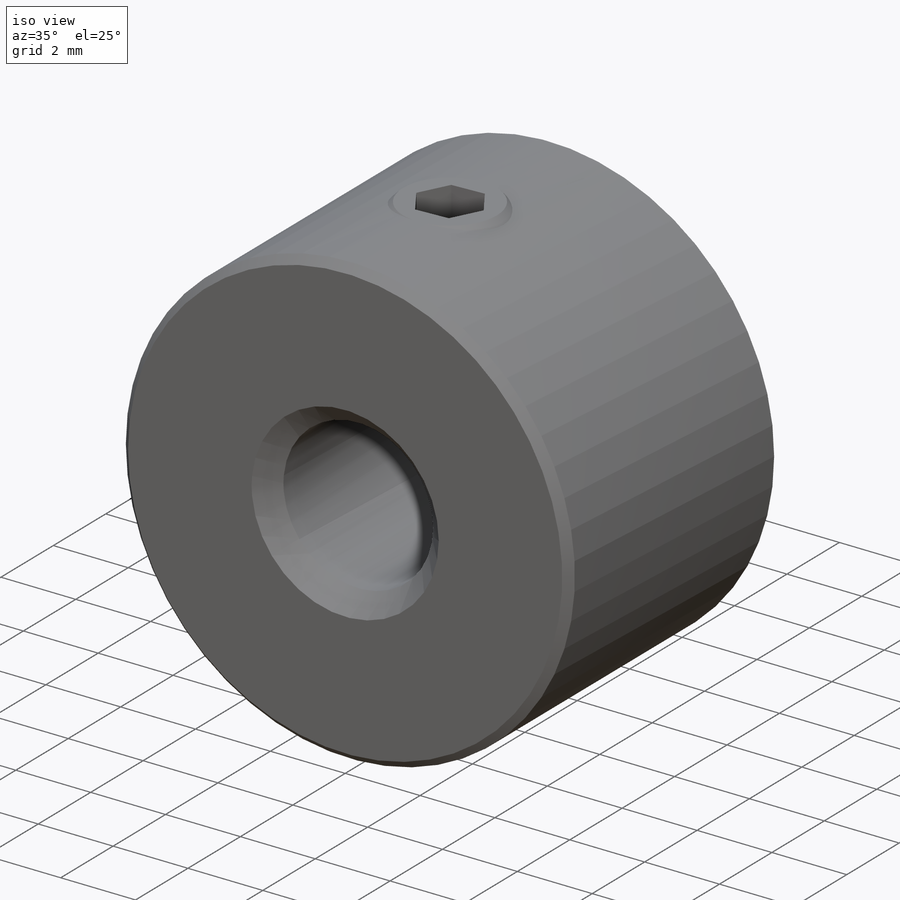
[diagram: iso view]
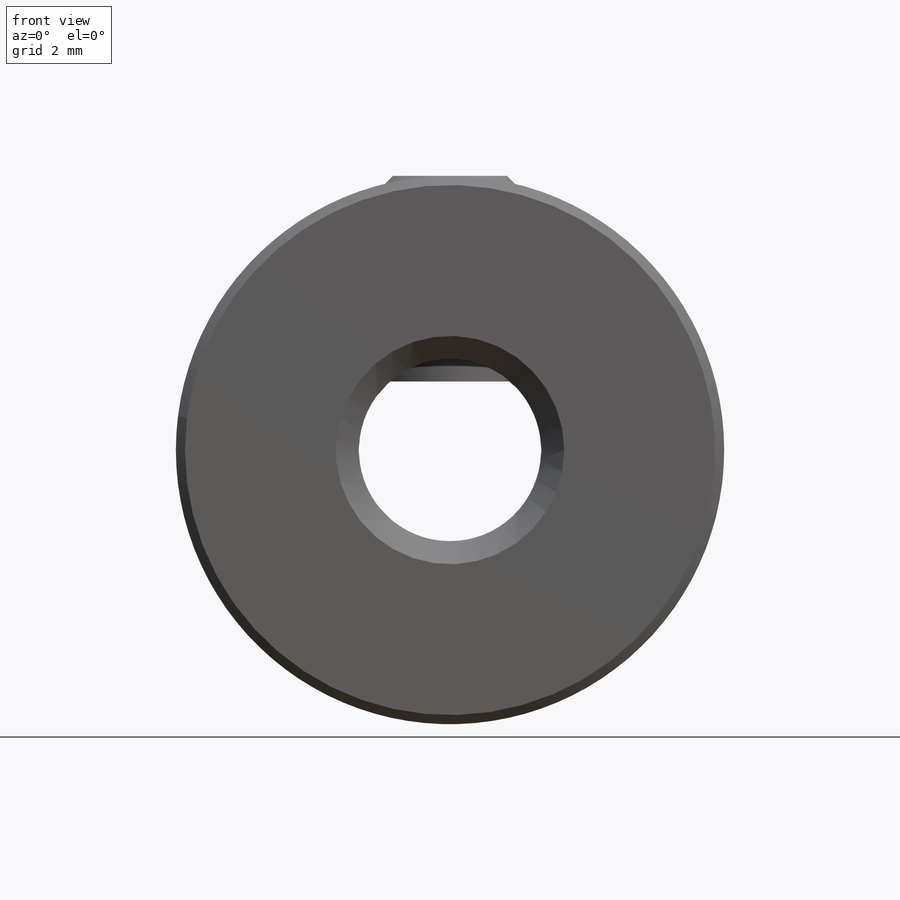
[diagram: front view]
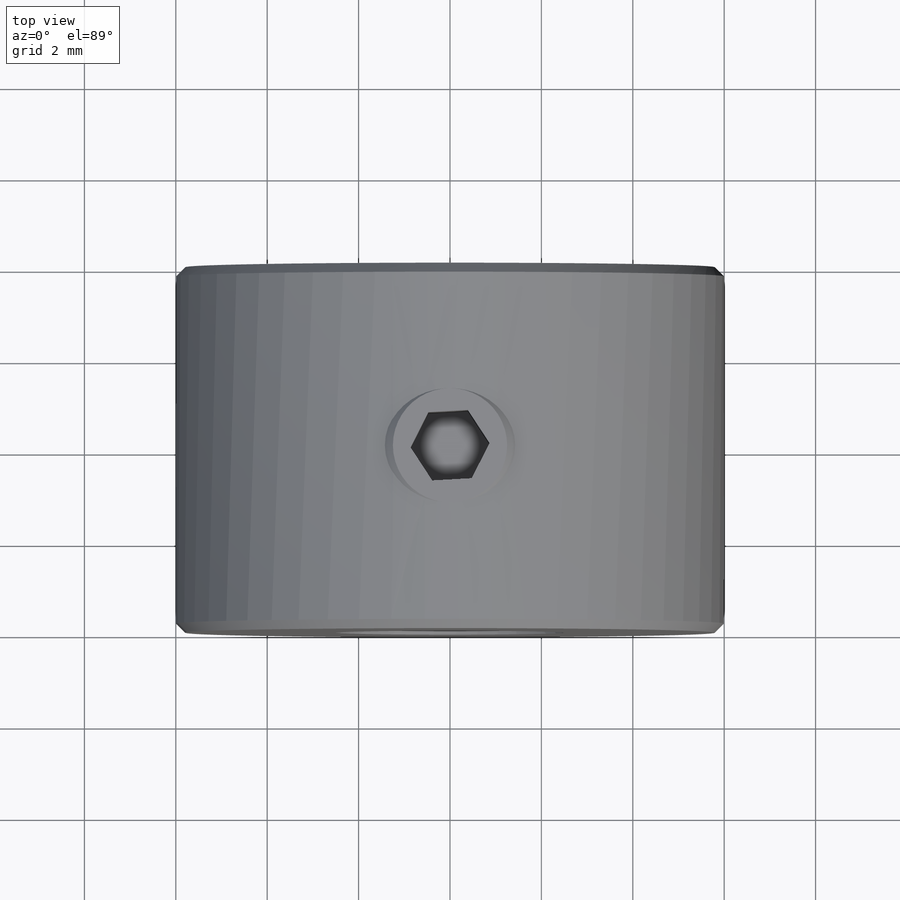
[diagram: top view]
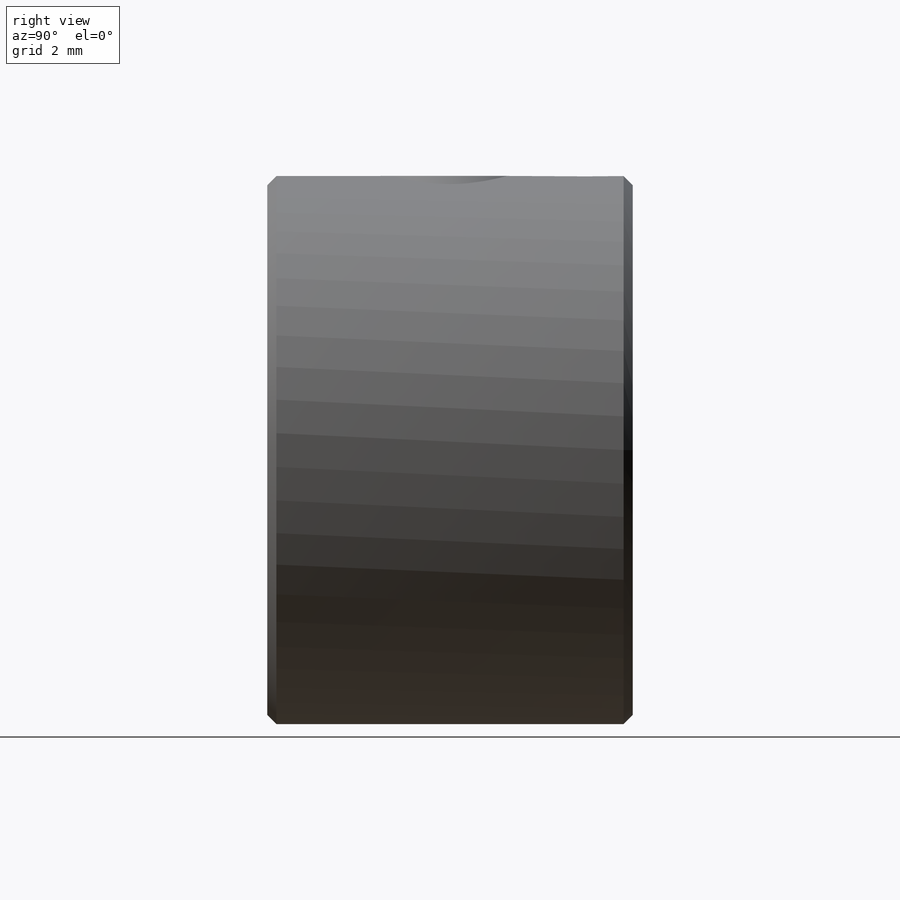
[diagram: right view]
SOLIDWORKS PART (.sldprt)
format: sldprt  version: not decoded by parser v0  size: 280,064 bytes
history: native  units: mm
features: sketch x4, material x3, chamfer x3, cut_extrude x2, revolve x1, plane x1, extrude x1 + 1 further entry (+12 scaffold rows collapsed)
feature tree (28):
  scaffold x12  (default folders/planes/origin — collapsed)
  material  "1060 Alloy"
  material  "Plain Carbon Steel"
  material  "1060 Alloy"
  "Cut-List-Item2"
  sketch  "Sketch1"  dims[c1.D1=4.0mm c1.D2=~17.207286mm c2.D1=4.0mm c2.D2=12.0mm c2.D3=31.0mm c2.D4=2.4mm c2.D5=8.0mm]
  revolve  "Revolve1"  Angle=360deg
  sketch  "Sketch2"  dims[D1=2.5mm D2=4.0mm]
  cut_extrude  "Cut-Extrude1"  [1 undecoded]
  chamfer  "Chamfer1"  Distance=0.2mm Angle=45deg
  plane  "Plane1"  Offset=1.5mm
  sketch  "Sketch4"  dims[D1=3.0mm]
  extrude  "Boss-Extrude1"  Depth=4.5mm
  chamfer  "Chamfer2"  Distance=0.25mm Angle=45deg
  sketch  "Sketch5"  dims[D1=1.5mm]
  cut_extrude  "Cut-Extrude3"  Depth=2mm
  chamfer  "Chamfer3"  Distance=0.5mm Angle=45deg
decode coverage: 10 of 11 modeling features carry decoded parameters; 1 rows unclassified (native names shown)
note: ~ marks probable driven/reference dimensions
note: 1 parameter value undecoded
note: suppression state not decoded; provenance and decode notes live in map.json
